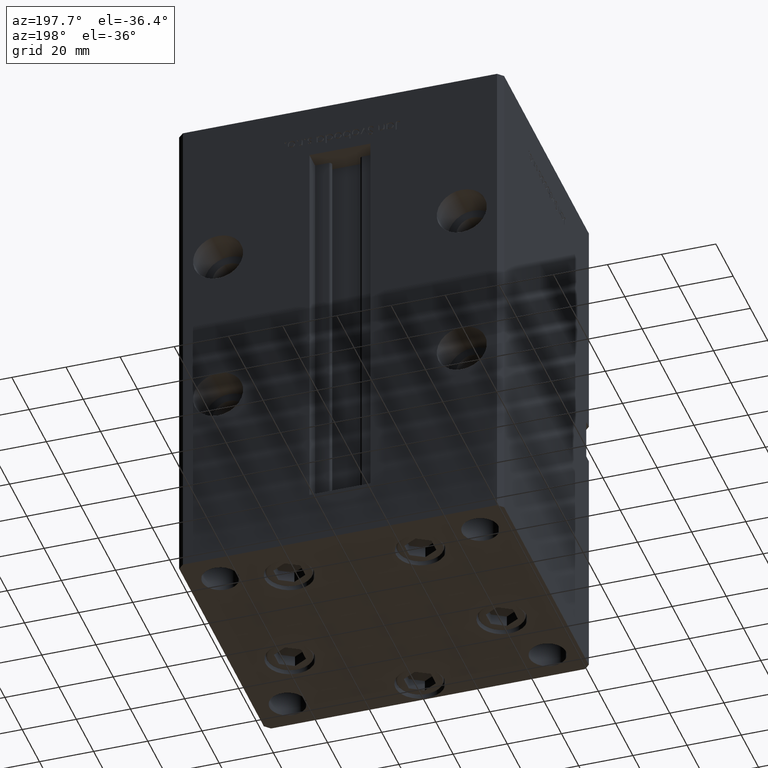
[diagram: clean part render]
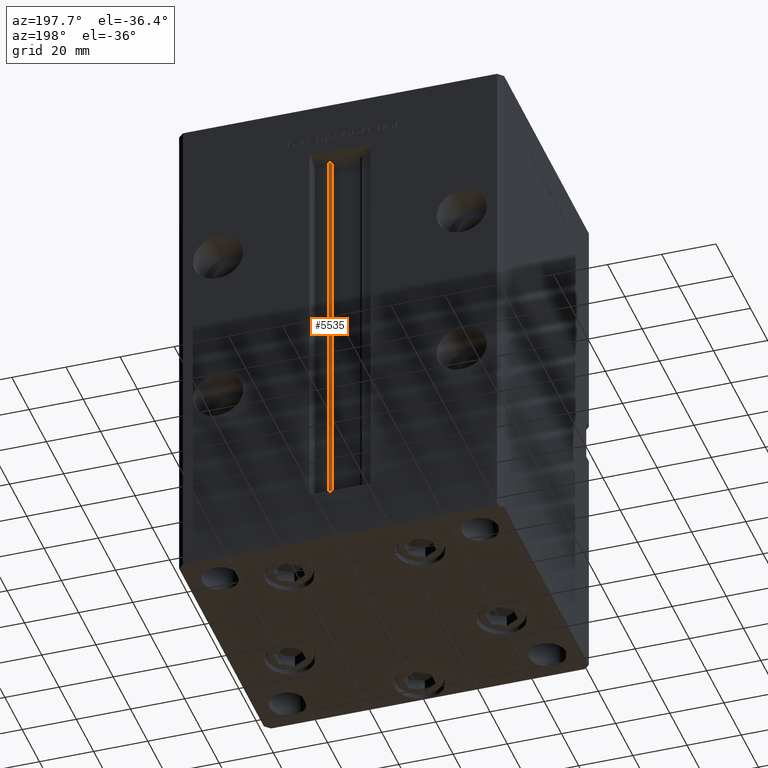
[diagram: same view with one face highlighted and labeled with its STEP entity id]
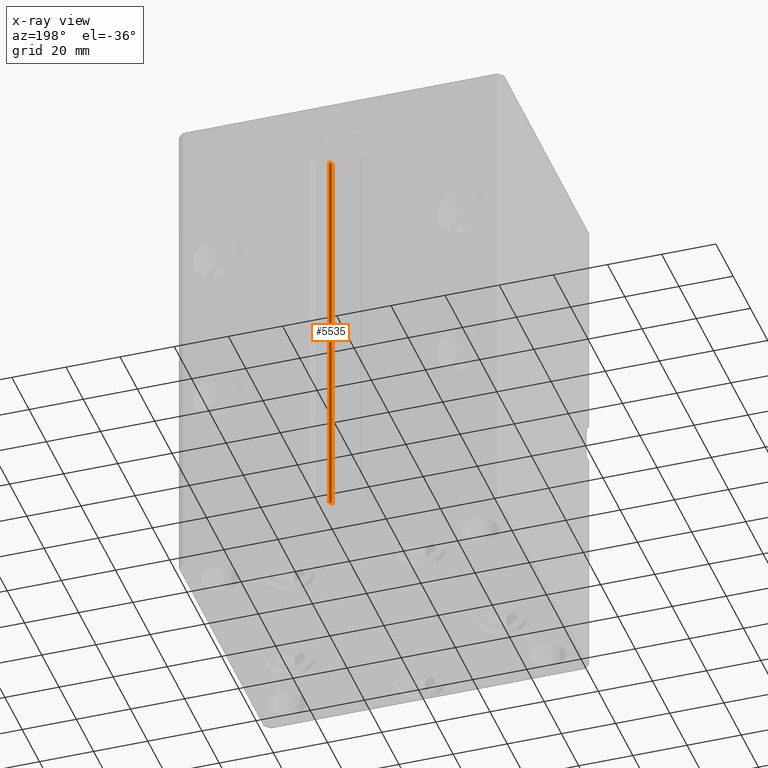
[diagram: x-ray of the same camera — body ghosted, the highlighted face saturated]
A machine part, auxiliary view. The second image highlights one B-rep face of the part: STEP entity #5535.
The next image is the same camera in x-ray: the body ghosted, the highlighted face saturated — about 0% of this face is hidden behind the body in this view.
In plain terms, the highlighted cylindrical surface (edge-blend (fillet) strip) has radius 0.9333 mm, axis along (0, 0, 1).
Its self-contained STEP definition (entity closure, byte-faithful):
#1566 = DIRECTION ( 'NONE',  ( 1.000000000000000000, 0.000000000000000000, 0.000000000000000000 ) ) ;
#5535 = ADVANCED_FACE ( 'NONE', ( #8542 ), #45528, .T. ) ;
#8133 = EDGE_CURVE ( 'NONE', #39294, #13049, #46313, .T. ) ;
#8542 = FACE_OUTER_BOUND ( 'NONE', #29499, .T. ) ;
#9069 = DIRECTION ( 'NONE',  ( 1.000000000000000000, 0.000000000000000000, 0.000000000000000000 ) ) ;
#11091 = ORIENTED_EDGE ( 'NONE', *, *, #13791, .T. ) ;
#11703 = LINE ( 'NONE', #44404, #49684 ) ;
#12855 = CARTESIAN_POINT ( 'NONE',  ( 6.183333333333997928, 43.56666666666600207, 148.5000000000000000 ) ) ;
#13025 = CIRCLE ( 'NONE', #44669, 0.9333333333340008142 ) ;
#13049 = VERTEX_POINT ( 'NONE', #44618 ) ;
#13140 = DIRECTION ( 'NONE',  ( 1.000000000000000000, 0.000000000000000000, 0.000000000000000000 ) ) ;
#13791 = EDGE_CURVE ( 'NONE', #47525, #27496, #13025, .T. ) ;
#15524 = CARTESIAN_POINT ( 'NONE',  ( 6.183333333333997928, 44.50000000000000711, 0.000000000000000000 ) ) ;
#18846 = AXIS2_PLACEMENT_3D ( 'NONE', #25958, #50062, #9069 ) ;
#21505 = ORIENTED_EDGE ( 'NONE', *, *, #28864, .F. ) ;
#22747 = ORIENTED_EDGE ( 'NONE', *, *, #46202, .T. ) ;
#23421 = CARTESIAN_POINT ( 'NONE',  ( 5.375042956467945388, 43.09999999999899956, 0.000000000000000000 ) ) ;
#25958 = CARTESIAN_POINT ( 'NONE',  ( 6.183333333333997928, 43.56666666666600207, 0.000000000000000000 ) ) ;
#27496 = VERTEX_POINT ( 'NONE', #51268 ) ;
#28864 = EDGE_CURVE ( 'NONE', #13049, #27496, #32677, .T. ) ;
#29499 = EDGE_LOOP ( 'NONE', ( #21505, #33565, #22747, #11091 ) ) ;
#32677 = LINE ( 'NONE', #15524, #52717 ) ;
#33565 = ORIENTED_EDGE ( 'NONE', *, *, #8133, .F. ) ;
#35249 = CARTESIAN_POINT ( 'NONE',  ( 5.375042956467942723, 43.09999999999899956, 148.5000000000000000 ) ) ;
#36471 = CARTESIAN_POINT ( 'NONE',  ( 6.183333333333997928, 43.56666666666600207, 0.000000000000000000 ) ) ;
#38285 = DIRECTION ( 'NONE',  ( 0.000000000000000000, 0.000000000000000000, -1.000000000000000000 ) ) ;
#39294 = VERTEX_POINT ( 'NONE', #23421 ) ;
#40390 = DIRECTION ( 'NONE',  ( -0.000000000000000000, -0.000000000000000000, 1.000000000000000000 ) ) ;
#43749 = AXIS2_PLACEMENT_3D ( 'NONE', #36471, #49314, #13140 ) ;
#44404 = CARTESIAN_POINT ( 'NONE',  ( 5.375042956467945388, 43.09999999999899956, 0.000000000000000000 ) ) ;
#44618 = CARTESIAN_POINT ( 'NONE',  ( 6.183333333333997928, 44.50000000000000711, 0.000000000000000000 ) ) ;
#44669 = AXIS2_PLACEMENT_3D ( 'NONE', #12855, #38285, #1566 ) ;
#45528 = CYLINDRICAL_SURFACE ( 'NONE', #18846, 0.9333333333340008142 ) ;
#46202 = EDGE_CURVE ( 'NONE', #39294, #47525, #11703, .T. ) ;
#46313 = CIRCLE ( 'NONE', #43749, 0.9333333333340008142 ) ;
#47525 = VERTEX_POINT ( 'NONE', #35249 ) ;
#49314 = DIRECTION ( 'NONE',  ( -0.000000000000000000, -0.000000000000000000, -1.000000000000000000 ) ) ;
#49684 = VECTOR ( 'NONE', #40390, 1000.000000000000000 ) ;
#50062 = DIRECTION ( 'NONE',  ( -0.000000000000000000, -0.000000000000000000, 1.000000000000000000 ) ) ;
#51268 = CARTESIAN_POINT ( 'NONE',  ( 6.183333333333997928, 44.50000000000000711, 148.5000000000000000 ) ) ;
#52717 = VECTOR ( 'NONE', #52753, 1000.000000000000000 ) ;
#52753 = DIRECTION ( 'NONE',  ( -0.000000000000000000, -0.000000000000000000, 1.000000000000000000 ) ) ;